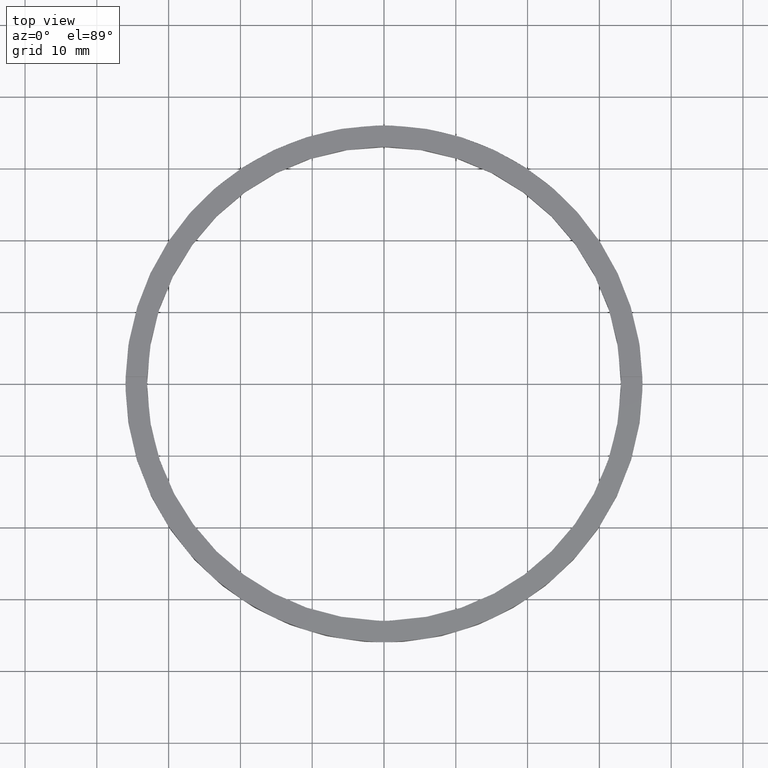
[diagram: clean part render]
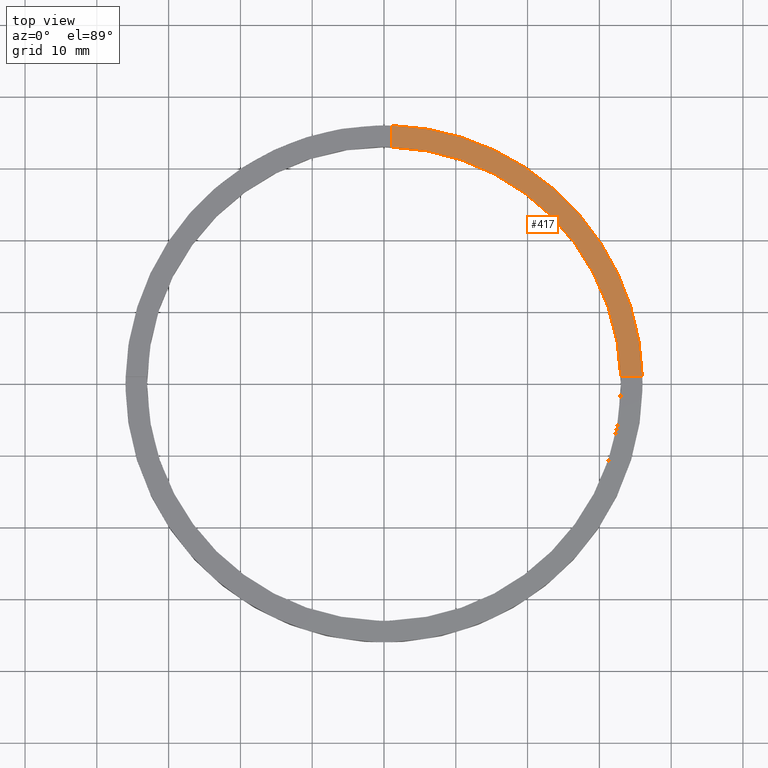
[diagram: same view with one face highlighted and labeled with its STEP entity id]
A machine part, top view. The second image highlights one B-rep face of the part: STEP entity #417.
In plain terms, the highlighted planar face has unit normal (0, 0, 1).
Its self-contained STEP definition (entity closure, byte-faithful):
#14 = LINE ( 'NONE', #48, #533 ) ;
#39 = CARTESIAN_POINT ( 'NONE',  ( 35.98610843089316091, 0.9999999999998421263, 3.500000000000000000 ) ) ;
#48 = CARTESIAN_POINT ( 'NONE',  ( 25.99999999999998934, 0.9999999999998414602, 3.500000000000000000 ) ) ;
#105 = VERTEX_POINT ( 'NONE', #39 ) ;
#116 = VECTOR ( 'NONE', #537, 1000.000000000000000 ) ;
#118 = CARTESIAN_POINT ( 'NONE',  ( 32.98484500494129179, 0.9999999999998419042, 3.500000000000000000 ) ) ;
#125 = CARTESIAN_POINT ( 'NONE',  ( 0.9999999999999749090, 32.98484500494129179, 3.500000000000000000 ) ) ;
#133 = VERTEX_POINT ( 'NONE', #125 ) ;
#140 = CARTESIAN_POINT ( 'NONE',  ( 0.000000000000000000, 0.000000000000000000, 3.500000000000000000 ) ) ;
#145 = AXIS2_PLACEMENT_3D ( 'NONE', #140, #244, #286 ) ;
#155 = EDGE_CURVE ( 'NONE', #105, #181, #14, .T. ) ;
#181 = VERTEX_POINT ( 'NONE', #118 ) ;
#214 = EDGE_CURVE ( 'NONE', #105, #691, #270, .T. ) ;
#234 = DIRECTION ( 'NONE',  ( 1.000000000000000000, 0.000000000000000000, 0.000000000000000000 ) ) ;
#244 = DIRECTION ( 'NONE',  ( 0.000000000000000000, 0.000000000000000000, 1.000000000000000000 ) ) ;
#264 = DIRECTION ( 'NONE',  ( 0.000000000000000000, 0.000000000000000000, 1.000000000000000000 ) ) ;
#265 = EDGE_CURVE ( 'NONE', #133, #691, #641, .T. ) ;
#268 = CARTESIAN_POINT ( 'NONE',  ( 0.000000000000000000, 0.000000000000000000, 3.500000000000000000 ) ) ;
#270 = CIRCLE ( 'NONE', #546, 36.00000000000000000 ) ;
#286 = DIRECTION ( 'NONE',  ( 1.000000000000000000, 0.000000000000000000, 0.000000000000000000 ) ) ;
#312 = ORIENTED_EDGE ( 'NONE', *, *, #155, .F. ) ;
#346 = DIRECTION ( 'NONE',  ( -1.000000000000000000, -6.505213034913025371E-17, -0.000000000000000000 ) ) ;
#406 = EDGE_CURVE ( 'NONE', #181, #133, #650, .T. ) ;
#417 = ADVANCED_FACE ( 'NONE', ( #655 ), #618, .T. ) ;
#424 = CARTESIAN_POINT ( 'NONE',  ( 0.9999999999999749090, 35.98610843089316091, 3.500000000000000000 ) ) ;
#511 = DIRECTION ( 'NONE',  ( 0.000000000000000000, 0.000000000000000000, 1.000000000000000000 ) ) ;
#533 = VECTOR ( 'NONE', #346, 1000.000000000000000 ) ;
#537 = DIRECTION ( 'NONE',  ( 0.000000000000000000, 1.000000000000000000, 0.000000000000000000 ) ) ;
#546 = AXIS2_PLACEMENT_3D ( 'NONE', #268, #264, #234 ) ;
#592 = ORIENTED_EDGE ( 'NONE', *, *, #265, .F. ) ;
#618 = PLANE ( 'NONE',  #706 ) ;
#631 = EDGE_LOOP ( 'NONE', ( #592, #707, #312, #719 ) ) ;
#634 = CARTESIAN_POINT ( 'NONE',  ( 0.9999999999999749090, 25.99999999999999645, 3.500000000000000000 ) ) ;
#641 = LINE ( 'NONE', #634, #116 ) ;
#650 = CIRCLE ( 'NONE', #145, 33.00000000000000000 ) ;
#655 = FACE_OUTER_BOUND ( 'NONE', #631, .T. ) ;
#683 = CARTESIAN_POINT ( 'NONE',  ( 0.000000000000000000, 0.000000000000000000, 3.500000000000000000 ) ) ;
#691 = VERTEX_POINT ( 'NONE', #424 ) ;
#701 = DIRECTION ( 'NONE',  ( 1.000000000000000000, 0.000000000000000000, -0.000000000000000000 ) ) ;
#706 = AXIS2_PLACEMENT_3D ( 'NONE', #683, #511, #701 ) ;
#707 = ORIENTED_EDGE ( 'NONE', *, *, #406, .F. ) ;
#719 = ORIENTED_EDGE ( 'NONE', *, *, #214, .T. ) ;